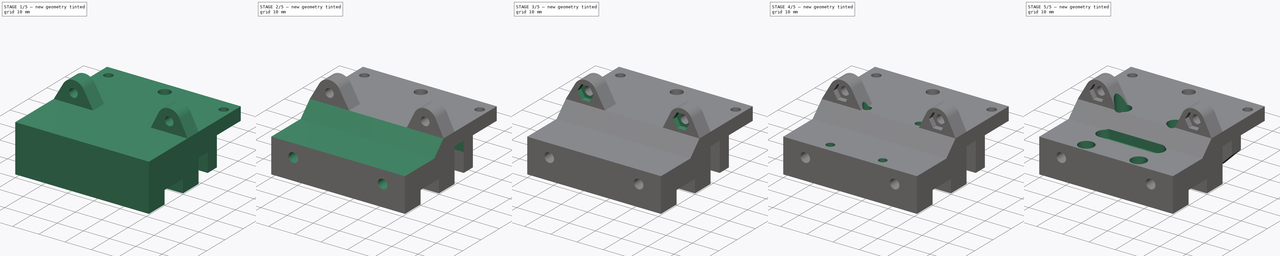
[diagram: build sequence overview — one tinted view per stage of 5, left to right]
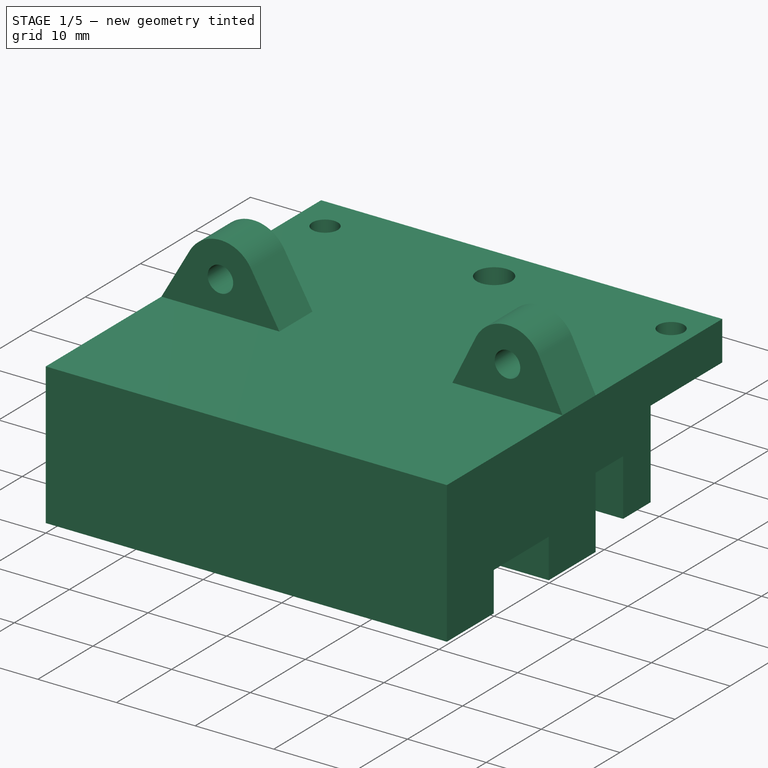
[diagram: stage 1 of 5 — iso view after this stage's code; geometry added in this stage tinted green]
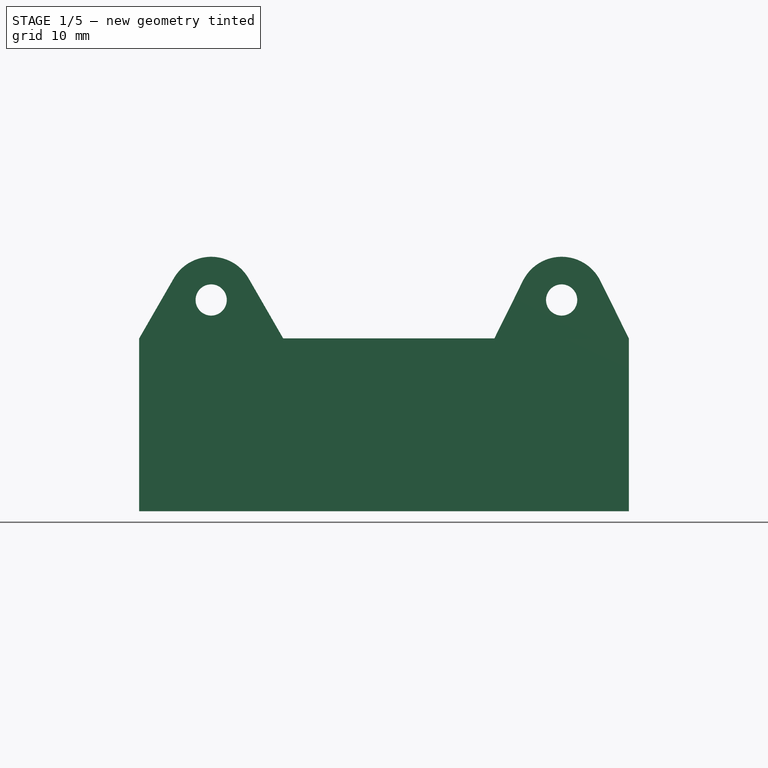
[diagram: stage 1 of 5 — front view after this stage's code; geometry added in this stage tinted green]
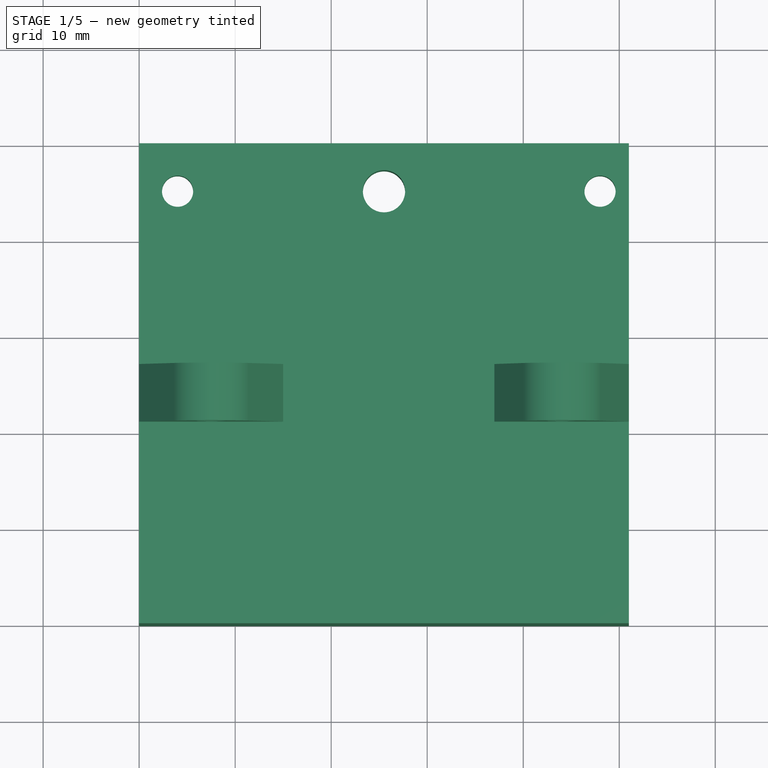
[diagram: stage 1 of 5 — top view after this stage's code; geometry added in this stage tinted green]
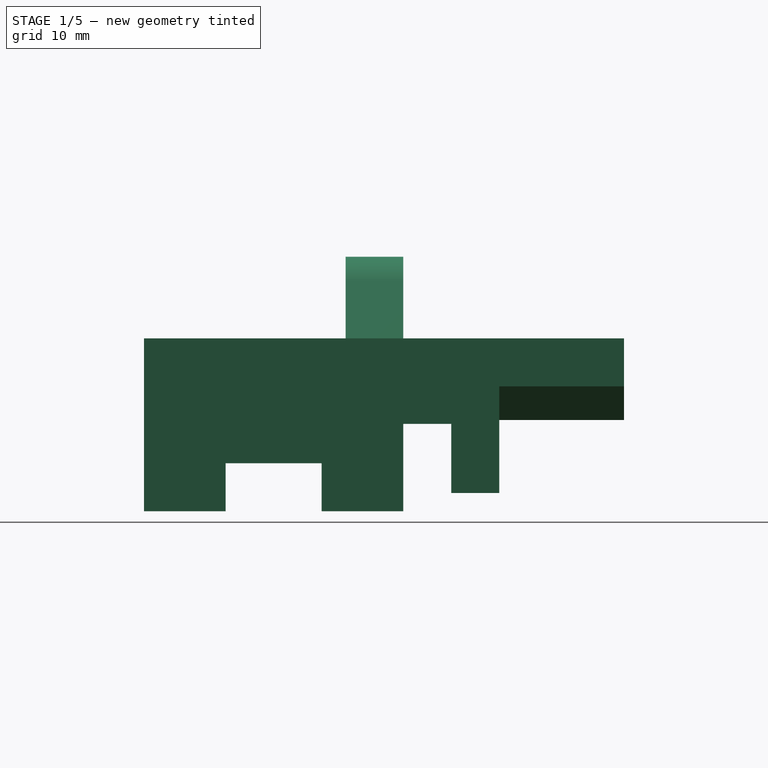
[diagram: stage 1 of 5 — right view after this stage's code; geometry added in this stage tinted green]
FCSTD DOCUMENT  (FreeCAD 0.19R24267 +99 (Git))
Label: top-mellow-libra-mini-mgn12h
License: All rights reserved
LicenseURL: http://en.wikipedia.org/wiki/All_rights_reserved
objects: Sketcher::SketchObject×18, PartDesign::Pocket×13, PartDesign::Hole×3, PartDesign::Pad×2, Part::Feature×1, PartDesign::Body×1
note: 56 computed .brp shape members not serialized (recipe doc carries the construction recipe); baked Part::Feature solids carry a one-line shape summary decoded from their .brp

FEATURE [Sketcher::SketchObject] Sketch  label="Sketch - body main"
  FullyConstrained = true
  MapMode = 5
  Placement = pos=(0,0,0) rot=(0.57735,0.57735,0.57735;2.0944rad)
  Support = -> [YZ_Plane]
  sketch-geometry (14):
    g0: LineSegment StartX=0 StartY=0 StartZ=0 EndX=8.5 EndY=0 EndZ=0
    g1: LineSegment StartX=8.5 StartY=0 StartZ=0 EndX=8.5 EndY=5 EndZ=0
    g2: LineSegment StartX=8.5 StartY=5 StartZ=0 EndX=18.5 EndY=5 EndZ=0
    g3: LineSegment StartX=18.5 StartY=5 StartZ=0 EndX=18.5 EndY=0 EndZ=0
    g4: LineSegment StartX=18.5 StartY=0 StartZ=0 EndX=27 EndY=0 EndZ=0
    g5: LineSegment StartX=27 StartY=0 StartZ=0 EndX=27 EndY=9.1 EndZ=0
    g6: LineSegment StartX=27 StartY=9.1 StartZ=0 EndX=32 EndY=9.1 EndZ=0
    g7: LineSegment StartX=32 StartY=9.1 StartZ=0 EndX=32 EndY=1.9 EndZ=0
    g8: LineSegment StartX=32 StartY=1.9 StartZ=0 EndX=50 EndY=1.9 EndZ=0
    g9: LineSegment StartX=0 StartY=0 StartZ=0 EndX=0 EndY=18 EndZ=0
    g10: LineSegment StartX=0 StartY=18 StartZ=0 EndX=50 EndY=18 EndZ=0
    g11: LineSegment StartX=50 StartY=18 StartZ=0 EndX=50 EndY=1.9 EndZ=0
    g12: GeomPoint X=32 Y=18 Z=0
    g13: LineSegment StartX=32 StartY=18 StartZ=0 EndX=32 EndY=9.1 EndZ=0
  constraints (39):
    c: Coincident(g0,g-1)
    c: PointOnObject(g0,g-1)
    c: Distance(g0) = 8.5
    c: Coincident(g1,g0)
    c: Perpendicular(g1,g-1)
    c: Coincident(g2,g1)
    c: Horizontal(g2)
    c: Coincident(g3,g2)
    c: PointOnObject(g3,g-1)
    c: Vertical(g3)
    c: Distance(g1) = 5
    c: Coincident(g4,g3)
    c: PointOnObject(g4,g-1)
    c: Distance(g4) = 8.5
    c: Coincident(g5,g4)
    c: Vertical(g5)
    c: Distance(g5) = 9.1
    c: Coincident(g6,g5)
    c: Horizontal(g6)
    c: Distance(g6) = 5
    c: Coincident(g7,g6)
    c: Vertical(g7)
    c: Distance(g7) = 7.2
    c: Coincident(g8,g7)
    c: Horizontal(g8)
    c: Coincident(g9,g0)
    c: PointOnObject(g9,g-2)
    c: Coincident(g10,g9)
    c: Horizontal(g10)
    c: Distance(g10) = 50
    c: Coincident(g11,g10)
    c: Vertical(g11)
    c: Coincident(g8,g11)
    c: Distance(g9) = 18
    c: Distance(g0,g4) = 27
    c: PointOnObject(g12,g10)
    c: Vertical(g13)
    c: Coincident(g12,g13)
    c: Coincident(g13,g6)
FEATURE [PartDesign::Pad] Pad  label="Pad - body main"
  Direction = (1,1,1)
  Length = 51
  Length2 = 100
  Placement = pos=(0,0,0) rot=(0.57735,0.57735,0.57735;2.0944rad)
  Profile = -> Sketch
  Type = 0
FEATURE [Part::Feature] Solid  label="top_orbiter_2_0_mgn12"
  Placement = pos=(46.5,13.5,23.05) rot=(0.707107,0,0.707107;3.14159rad)
  shape: bbox 46.11 x 57.65 x 19.52 mm, 148 faces (baked)
FEATURE [Sketcher::SketchObject] Sketch001  label="Sketch - holes for mounting the extruder"
  ExternalGeometry = -> [Pad,Sketch]
  FullyConstrained = true
  MapMode = 5
  Placement = pos=(-5e-15,7.9e-15,18) rot=(0,0,-1;1.5708rad)
  Support = -> [Pad]
  sketch-geometry (15):
    g0: LineSegment StartX=-27 StartY=51 StartZ=0 EndX=-27 EndY=0 EndZ=0
    g1: LineSegment StartX=-50 StartY=51 StartZ=0 EndX=-50 EndY=0 EndZ=0
    g2: GeomPoint X=-27 Y=25.5 Z=0
    g3: GeomPoint X=-50 Y=25.5 Z=0
    g4: LineSegment StartX=-27 StartY=25.5 StartZ=0 EndX=-50 EndY=25.5 EndZ=0
    g5: GeomPoint X=-45 Y=25.5 Z=0
    g6: GeomPoint X=-45 Y=51 Z=0
    g7: GeomPoint X=-45 Y=0 Z=0
    g8: LineSegment StartX=-45 StartY=51 StartZ=0 EndX=-45 EndY=0 EndZ=0
    g9: GeomPoint X=-45 Y=25.5 Z=0
    g10: Circle CenterX=-45 CenterY=25.5 CenterZ=0 NormalX=0 NormalY=0 NormalZ=1 AngleXU=0 Radius=2.2
    g11: GeomPoint X=-45 Y=4 Z=0
    g12: GeomPoint X=-45 Y=48 Z=0
    g13: Circle CenterX=-45 CenterY=48 CenterZ=0 NormalX=0 NormalY=0 NormalZ=1 AngleXU=0 Radius=1.625
    g14: Circle CenterX=-45 CenterY=4 CenterZ=0 NormalX=0 NormalY=0 NormalZ=1 AngleXU=0 Radius=1.625
  constraints (27):
    c: Coincident(g0,g-5)
    c: Coincident(g0,g-7)
    c: Coincident(g1,g-4)
    c: Coincident(g1,g-8)
    c: Symmetric(g0,g0,g2)
    c: Symmetric(g1,g1,g3)
    c: Coincident(g4,g2)
    c: Coincident(g4,g3)
    c: PointOnObject(g5,g4)
    c: Distance(g5,g2) = 18
    c: PointOnObject(g6,g-4)
    c: PointOnObject(g7,g-9)
    c: Coincident(g8,g6)
    c: Coincident(g8,g7)
    c: PointOnObject(g9,g8)
    c: Coincident(g9,g5)
    c: Perpendicular(g4,g8)
    c: Coincident(g10,g5)
    c: Diameter(g10) = 4.4
    c: PointOnObject(g11,g8)
    c: PointOnObject(g12,g8)
    c: Distance(g10,g11) = 21.5
    c: Distance(g12,g10) = 22.5
    c: Coincident(g13,g12)
    c: Coincident(g14,g11)
    c: Diameter(g13) = 3.25
    c: Diameter(g14) = 3.25
FEATURE [PartDesign::Pocket] Pocket  label="Pocket - holes for mounting the extruder "
  BaseFeature = -> Pad
  Length = 18
  Length2 = 100
  Placement = pos=(0,0,0) rot=(0.57735,0.57735,0.57735;2.0944rad)
  Profile = -> Sketch001
  Type = 0
FEATURE [Sketcher::SketchObject] Sketch002
  ExternalGeometry = -> [Sketch,Pocket]
  FullyConstrained = false
  MapMode = 5
  Placement = pos=(2.2e-14,50,-1.1e-14) rot=(0.57735,0.57735,0.57735;4.18879rad)
  Support = -> [Pocket]
  sketch-geometry (26):
    g0: GeomPoint X=18 Y=25.5 Z=0
    g1: LineSegment StartX=1.9 StartY=51 StartZ=0 EndX=1.9 EndY=-1.42e-14 EndZ=0
    g2: GeomPoint X=1.9 Y=25.5 Z=0
    g3: LineSegment StartX=18 StartY=51 StartZ=0 EndX=1.9 EndY=51 EndZ=0
    g4: LineSegment StartX=18 StartY=-2.41e-14 StartZ=0 EndX=1.9 EndY=-1.42e-14 EndZ=0
    g5: LineSegment StartX=18 StartY=25.5 StartZ=0 EndX=1.9 EndY=25.5 EndZ=0
    g6: GeomPoint X=13 Y=51 Z=0
    g7: GeomPoint X=13 Y=-2.13e-14 Z=0
    g8: LineSegment StartX=13 StartY=51 StartZ=0 EndX=13 EndY=-2.13e-14 EndZ=0
    g9: GeomPoint X=13 Y=25.5 Z=0
    g10: GeomPoint X=13 Y=25.5 Z=0
    g11: GeomPoint X=9.5 Y=25.5 Z=0
    g12: GeomPoint X=9.5 Y=51 Z=0
    g13: GeomPoint X=9.5 Y=-1.42e-14 Z=0
    g14: LineSegment StartX=9.5 StartY=51 StartZ=0 EndX=9.5 EndY=-1.42e-14 EndZ=0
    g15: GeomPoint X=9.5 Y=25.5 Z=0
    g16: GeomPoint X=13 Y=11 Z=0
    g17: GeomPoint X=13 Y=40 Z=0
    g18: LineSegment StartX=13 StartY=40 StartZ=0 EndX=9.5 EndY=36.5 EndZ=0
    g19: LineSegment StartX=13 StartY=11 StartZ=0 EndX=9.5 EndY=14.5 EndZ=0
    g20: LineSegment StartX=13 StartY=-2.13e-14 StartZ=0 EndX=13 EndY=11 EndZ=0
    g21: LineSegment StartX=13 StartY=40 StartZ=0 EndX=13 EndY=51 EndZ=0
    g22: LineSegment StartX=13 StartY=51 StartZ=0 EndX=1.9 EndY=51 EndZ=0
    g23: LineSegment StartX=1.9 StartY=51 StartZ=0 EndX=1.9 EndY=-1.42e-14 EndZ=0
    g24: LineSegment StartX=13 StartY=-2.13e-14 StartZ=0 EndX=1.9 EndY=-1.42e-14 EndZ=0
    g25: LineSegment StartX=9.5 StartY=14.5 StartZ=0 EndX=9.5 EndY=36.5 EndZ=0
  constraints (49):
    c: Symmetric(g-5,g-5,g0)
    c: Coincident(g1,g-6)
    c: Coincident(g1,g-4)
    c: Symmetric(g1,g1,g2)
    c: Coincident(g3,g-5)
    c: PointOnObject(g3,g1)
    c: Horizontal(g3)
    c: Coincident(g4,g-5)
    c: Coincident(g4,g1)
    c: Coincident(g5,g0)
    c: Coincident(g5,g2)
    c: PointOnObject(g6,g3)
    c: PointOnObject(g7,g4)
    c: Distance(g3,g6) = 5
    c: Coincident(g8,g6)
    c: Coincident(g8,g7)
    c: Perpendicular(g3,g8)
    c: PointOnObject(g9,g5)
    c: PointOnObject(g10,g8)
    c: Coincident(g9,g10)
    c: PointOnObject(g11,g5)
    c: PointOnObject(g12,g3)
    c: PointOnObject(g13,g4)
    c: Distance(g8,g12) = 3.5
    c: Coincident(g14,g12)
    c: Coincident(g14,g13)
    c: Perpendicular(g3,g14)
    c: PointOnObject(g15,g14)
    c: Coincident(g15,g11)
    c: PointOnObject(g18,g14)
    c: PointOnObject(g19,g14)
    c: PointOnObject(g16,g8)
    c: Distance(g9,g16) = 14.5
    c: PointOnObject(g17,g8)
    c: Distance(g17,g9) = 14.5
    c: Coincident(g19,g16)
    c: Coincident(g21,g18)
    c: Coincident(g21,g6)
    c: Coincident(g22,g1)
    c: Coincident(g20,g7)
    c: Coincident(g24,g20)
    c: Coincident(g24,g23)
    c: Coincident(g23,g1)
    c: Coincident(g23,g22)
    c: Coincident(g21,g22)
    c: Coincident(g18,g17)
    c: Coincident(g19,g20)
    c: Coincident(g25,g19)
    c: Coincident(g25,g18)
FEATURE [PartDesign::Pocket] Pocket001
  BaseFeature = -> Pocket
  Length = 13
  Length2 = 100
  Placement = pos=(0,0,0) rot=(0.57735,0.57735,0.57735;2.0944rad)
  Profile = -> Sketch002
  Type = 0
FEATURE [Sketcher::SketchObject] Sketch003
  ExternalGeometry = -> [Pocket001]
  FullyConstrained = false
  MapMode = 5
  Placement = pos=(1.19e-14,27,-5.9e-15) rot=(0.57735,0.57735,0.57735;4.18879rad)
  Support = -> [Pocket001]
  sketch-geometry (31):
    g0: LineSegment StartX=18 StartY=51 StartZ=0 EndX=18 EndY=-2.84e-14 EndZ=0
    g1: GeomPoint X=18 Y=25.5 Z=0
    g2: GeomPoint X=18 Y=44 Z=0
    g3: GeomPoint X=18 Y=7.5 Z=0
    g4: GeomPoint X=22 Y=51 Z=0
    g5: LineSegment StartX=22 StartY=51 StartZ=0 EndX=22 EndY=0 EndZ=0
    g6: GeomPoint X=22 Y=0 Z=0
    g7: GeomPoint X=22 Y=44 Z=0
    g8: LineSegment StartX=22 StartY=44 StartZ=0 EndX=18 EndY=44 EndZ=0
    g9: Circle CenterX=22 CenterY=44 CenterZ=0 NormalX=0 NormalY=0 NormalZ=1 AngleXU=0 Radius=1.625
    g10: ArcOfCircle CenterX=22 CenterY=44 CenterZ=0 NormalX=0 NormalY=0 NormalZ=1 AngleXU=0 Radius=4.5 StartAngle=5.17188 EndAngle=7.39449
    g11: LineSegment StartX=18 StartY=51 StartZ=0 EndX=23.9957 EndY=48.0333 EndZ=0
    g12: LineSegment StartX=18 StartY=51 StartZ=0 EndX=18 EndY=44 EndZ=0
    g13: GeomPoint X=18 Y=37 Z=0
    g14: LineSegment StartX=18 StartY=44 StartZ=0 EndX=18 EndY=37 EndZ=0
    g15: LineSegment StartX=18 StartY=37 StartZ=0 EndX=23.9957 EndY=39.9667 EndZ=0
    g16: LineSegment StartX=18 StartY=44 StartZ=0 EndX=18 EndY=37 EndZ=0
    g17: GeomPoint X=22 Y=7.5 Z=0
    g18: LineSegment StartX=18 StartY=7.5 StartZ=0 EndX=22 EndY=7.5 EndZ=0
    g19: Circle CenterX=22 CenterY=7.5 CenterZ=0 NormalX=0 NormalY=0 NormalZ=1 AngleXU=0 Radius=1.625
    g20: ArcOfCircle CenterX=22 CenterY=7.5 CenterZ=0 NormalX=0 NormalY=0 NormalZ=1 AngleXU=0 Radius=4.5 StartAngle=5.23532 EndAngle=7.33105
    g21: LineSegment StartX=18 StartY=-2.84e-14 StartZ=0 EndX=24.2474 EndY=3.60139 EndZ=0
    g22: GeomPoint X=18 Y=61.4131 Z=0
    g23: GeomPoint X=18 Y=61.4131 Z=0
    g24: GeomPoint X=18 Y=61.4131 Z=0
    g25: LineSegment StartX=18 StartY=15 StartZ=0 EndX=24.2474 EndY=11.3986 EndZ=0
    g26: LineSegment StartX=18 StartY=15 StartZ=0 EndX=18 EndY=7.5 EndZ=0
    g27: LineSegment StartX=18 StartY=7.5 StartZ=0 EndX=18 EndY=-2.84e-14 EndZ=0
    g28: GeomPoint X=22 Y=7.5 Z=0
    g29: GeomPoint X=22 Y=44 Z=0
    g30: GeomPoint X=22 Y=7.5 Z=0
  constraints (57):
    c: PointOnObject(g0,g-3)
    c: Coincident(g0,g-4)
    c: Vertical(g0)
    c: Symmetric(g0,g0,g1)
    c: PointOnObject(g2,g0)
    c: PointOnObject(g3,g0)
    c: Distance(g1,g2) = 18.5
    c: Distance(g3,g1) = 18
    c: PointOnObject(g4,g-3)
    c: Coincident(g5,g4)
    c: Vertical(g5)
    c: PointOnObject(g6,g-1)
    c: Coincident(g5,g6)
    c: Distance(g4,g0) = 4
    c: PointOnObject(g7,g5)
    c: Coincident(g8,g7)
    c: Coincident(g8,g2)
    c: Perpendicular(g0,g8)
    c: Diameter(g9) = 3.25
    c: Coincident(g7,g9)
    c: Coincident(g10,g9)
    c: Radius(g10) = 4.5
    c: Coincident(g11,g0)
    c: Tangent(g10,g11) = 1.5708
    c: PointOnObject(g12,g-3)
    c: Coincident(g12,g2)
    c: Vertical(g12)
    c: PointOnObject(g13,g0)
    c: Coincident(g14,g2)
    c: Coincident(g14,g13)
    c: Equal(g12,g14)
    c: Coincident(g15,g13)
    c: Tangent(g10,g15) = -1.5708
    c: Coincident(g16,g12)
    c: Coincident(g16,g15)
    c: PointOnObject(g17,g5)
    c: Coincident(g18,g3)
    c: Horizontal(g18)
    c: Coincident(g18,g17)
    c: Coincident(g19,g17)
    c: Coincident(g20,g19)
    c: Diameter(g19) = 3.25
    c: Radius(g20) = 4.5
    c: Coincident(g21,g0)
    c: Tangent(g20,g21) = -1.5708
    c: PointOnObject(g22,g0)
    c: PointOnObject(g25,g0)
    c: Coincident(g26,g25)
    c: PointOnObject(g26,g18)
    c: Vertical(g26)
    c: Coincident(g27,g26)
    c: Coincident(g27,g21)
    c: Equal(g27,g26)
    c: Tangent(g25,g20) = 1.5708
    c: Coincident(g28,g19)
    c: Coincident(g29,g9)
    c: Coincident(g30,g19)
FEATURE [PartDesign::Pad] Pad001
  BaseFeature = -> Pocket001
  Direction = (1,1,1)
  Length = 6
  Length2 = 100
  Placement = pos=(0,0,0) rot=(0.57735,0.57735,0.57735;2.0944rad)
  Profile = -> Sketch003
  Reversed = true
  Type = 0
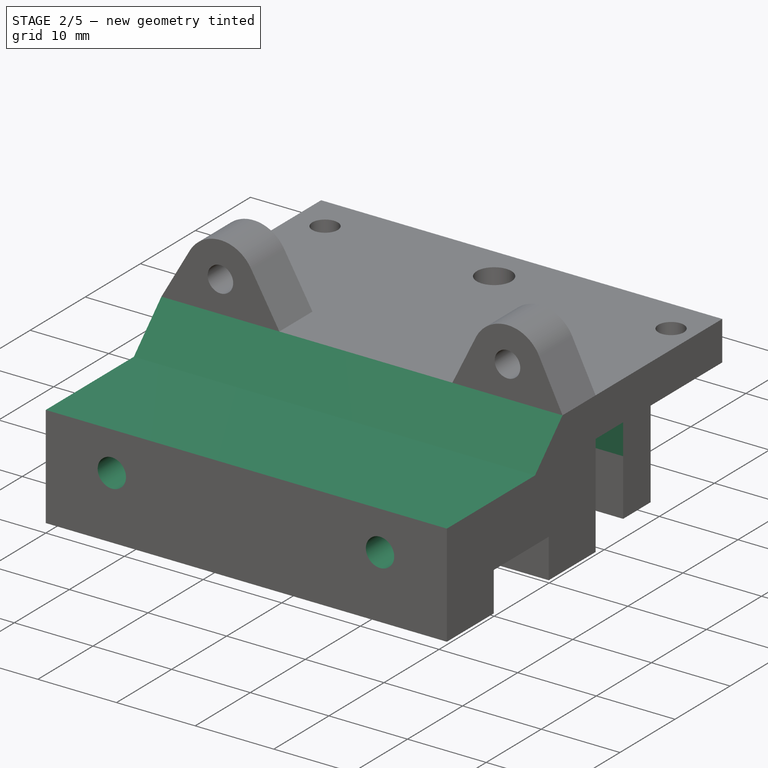
[diagram: stage 2 of 5 — iso view after this stage's code; geometry added in this stage tinted green]
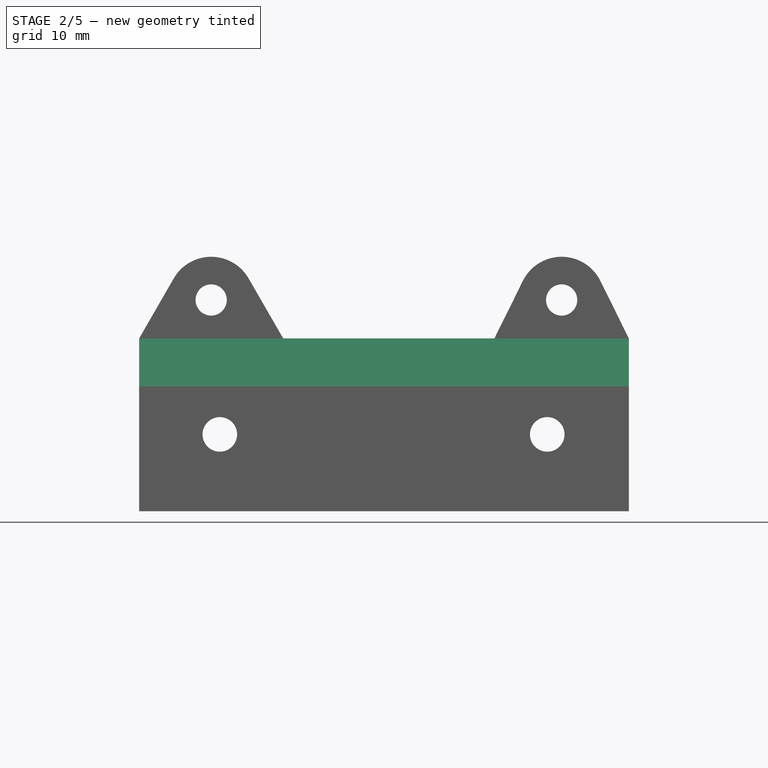
[diagram: stage 2 of 5 — front view after this stage's code; geometry added in this stage tinted green]
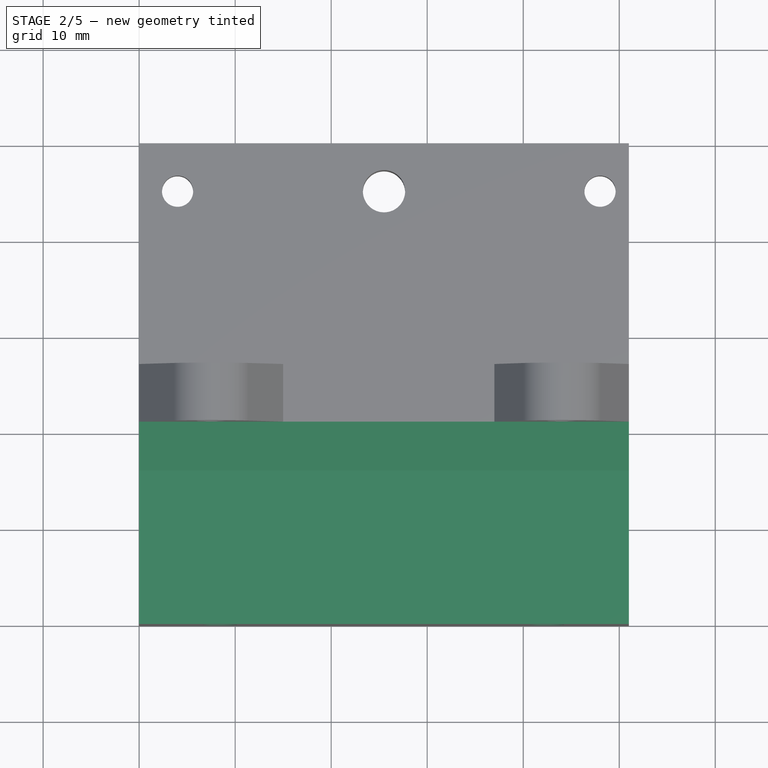
[diagram: stage 2 of 5 — top view after this stage's code; geometry added in this stage tinted green]
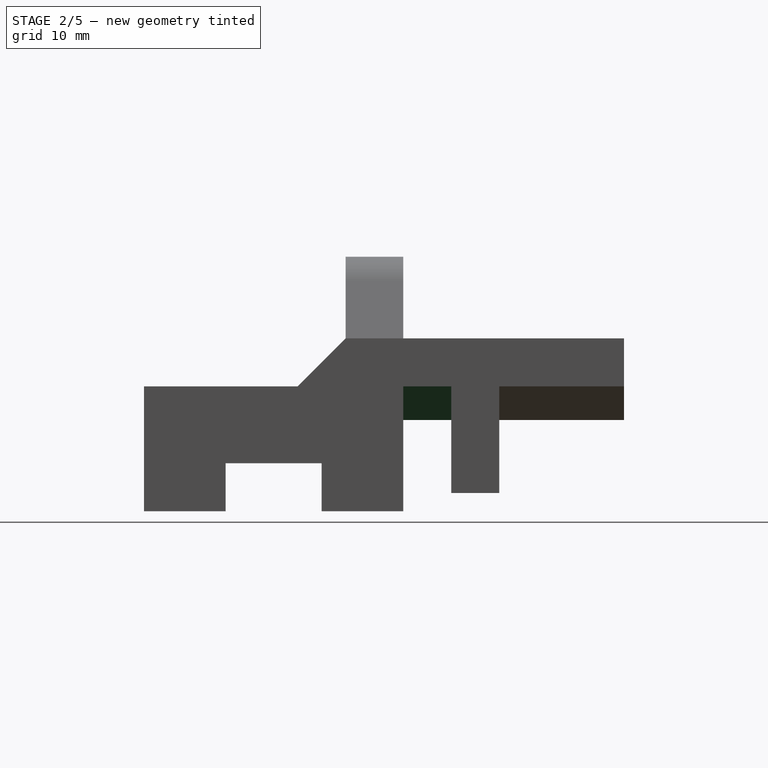
[diagram: stage 2 of 5 — right view after this stage's code; geometry added in this stage tinted green]
FEATURE [Sketcher::SketchObject] Sketch004
  ExternalGeometry = -> [Pocket001,Pad001]
  FullyConstrained = true
  MapMode = 5
  Placement = pos=(0,0,0) rot=(0.57735,0.57735,-0.57735;4.18879rad)
  Support = -> [Pad]
  sketch-geometry (15):
    g0: GeomPoint X=0 Y=-13 Z=0
    g1: LineSegment StartX=37 StartY=-13 StartZ=0 EndX=0 EndY=-13 EndZ=0
    g2: LineSegment StartX=50 StartY=-18 StartZ=0 EndX=7.1e-15 EndY=-18 EndZ=0
    g3: GeomPoint X=16 Y=-18 Z=0
    g4: GeomPoint X=16 Y=-13 Z=0
    g5: GeomPoint X=16 Y=-13 Z=0
    g6: LineSegment StartX=0 StartY=-18 StartZ=0 EndX=21 EndY=-18 EndZ=0
    g7: LineSegment StartX=21 StartY=-18 StartZ=0 EndX=16 EndY=-13 EndZ=0
    g8: GeomPoint X=16 Y=-13 Z=0
    g9: GeomPoint X=16 Y=-13 Z=0
    g10: GeomPoint X=16 Y=-13 Z=0
    g11: GeomPoint X=0 Y=-13 Z=0
    g12: LineSegment StartX=0 StartY=-13 StartZ=0 EndX=16 EndY=-13 EndZ=0
    g13: LineSegment StartX=0 StartY=-13 StartZ=0 EndX=0 EndY=-18 EndZ=0
    g14: LineSegment StartX=16 StartY=-13 StartZ=0 EndX=16 EndY=-18 EndZ=0
  constraints (26):
    c: PointOnObject(g0,g-2)
    c: Coincident(g1,g-3)
    c: Coincident(g1,g0)
    c: Perpendicular(g-2,g1)
    c: Coincident(g2,g-6)
    c: Coincident(g2,g-7)
    c: PointOnObject(g3,g2)
    c: PointOnObject(g4,g1)
    c: Coincident(g5,g4)
    c: PointOnObject(g6,g-2)
    c: Horizontal(g6)
    c: Coincident(g7,g4)
    c: Coincident(g8,g7)
    c: Coincident(g9,g7)
    c: Coincident(g10,g7)
    c: Coincident(g11,g0)
    c: Coincident(g12,g0)
    c: Coincident(g12,g7)
    c: Coincident(g13,g12)
    c: Coincident(g13,g6)
    c: Coincident(g-8,g6)
    c: Coincident(g7,g6)
    c: Coincident(g14,g7)
    c: Coincident(g14,g3)
    c: Vertical(g14)
    c: Distance(g6,g3) = 5
FEATURE [PartDesign::Pocket] Pocket002
  BaseFeature = -> Pad001
  Length = 51
  Length2 = 100
  Placement = pos=(0,0,0) rot=(0.57735,0.57735,0.57735;2.0944rad)
  Profile = -> Sketch004
  Type = 0
FEATURE [Sketcher::SketchObject] Sketch005
  FullyConstrained = true
  MapMode = 5
  Placement = pos=(-7.63e-14,1.08e-14,13) rot=(0.707107,0.707107,0;3.14159rad)
  Support = -> [Pocket002]
FEATURE [Sketcher::SketchObject] Sketch006
  ExternalGeometry = -> [Sketch]
  FullyConstrained = false
  MapMode = 5
  Placement = pos=(0,0,0) rot=(1,0,0;1.5708rad)
  sketch-geometry (9):
    g0: GeomPoint X=-1.8e-15 Y=8 Z=0
    g1: GeomPoint X=51 Y=8 Z=0
    g2: LineSegment StartX=-1.8e-15 StartY=8 StartZ=0 EndX=51 EndY=8 EndZ=0
    g3: GeomPoint X=8.4 Y=8 Z=0
    g4: GeomPoint X=42.5 Y=8 Z=0
    g5: GeomPoint X=25.5 Y=8 Z=0
    g6: GeomPoint X=42.5 Y=8 Z=0
    g7: Circle CenterX=8.4 CenterY=8 CenterZ=0 NormalX=0 NormalY=0 NormalZ=1 AngleXU=0 Radius=1.645
    g8: Circle CenterX=42.5 CenterY=8 CenterZ=0 NormalX=0 NormalY=0 NormalZ=1 AngleXU=0 Radius=1.595
  constraints (16):
    c: PointOnObject(g0,g-3)
    c: PointOnObject(g1,g-4)
    c: Coincident(g2,g0)
    c: Coincident(g2,g1)
    c: Horizontal(g2)
    c: PointOnObject(g3,g2)
    c: PointOnObject(g4,g2)
    c: Symmetric(g0,g1,g5)
    c: Distance(g-1,g0) = 8
    c: Coincident(g6,g4)
    c: Coincident(g7,g3)
    c: Distance(g3,g5) = 17.1
    c: Diameter(g7) = 3.29
    c: Distance(g4,g5) = 17
    c: Coincident(g8,g4)
    c: Diameter(g8) = 3.19
FEATURE [Sketcher::SketchObject] Sketch007
  ExternalGeometry = -> [Sketch006,Sketch002]
  FullyConstrained = true
  MapMode = 5
  Placement = pos=(1.5e-14,37,-6.3e-14) rot=(0,0.707107,0.707107;3.14159rad)
  sketch-geometry (8):
    g0: Circle CenterX=-42.5 CenterY=8 CenterZ=0 NormalX=0 NormalY=0 NormalZ=1 AngleXU=0 Radius=3
    g1: Circle CenterX=-8.4 CenterY=8 CenterZ=0 NormalX=0 NormalY=0 NormalZ=1 AngleXU=0 Radius=2.9
    g2: GeomPoint X=-51 Y=5 Z=0
    g3: GeomPoint X=0 Y=5 Z=0
    g4: LineSegment StartX=-51 StartY=5 StartZ=0 EndX=0 EndY=5 EndZ=0
    g5: Circle CenterX=-19.95 CenterY=5 CenterZ=0 NormalX=0 NormalY=0 NormalZ=1 AngleXU=0 Radius=1.645
    g6: Circle CenterX=-30.95 CenterY=5 CenterZ=0 NormalX=0 NormalY=0 NormalZ=1 AngleXU=0 Radius=1.645
    g7: GeomPoint X=-25.5 Y=5 Z=0
  constraints (17):
    c: Diameter(g0) = 6
    c: Diameter(g1) = 5.8
    c: PointOnObject(g2,g-5)
    c: PointOnObject(g3,g-2)
    c: Coincident(g4,g2)
    c: Coincident(g4,g3)
    c: Horizontal(g4)
    c: PointOnObject(g5,g4)
    c: PointOnObject(g6,g4)
    c: Diameter(g5) = 3.29
    c: Diameter(g6) = 3.29
    c: Distance(g4,g-6) = 3.1
    c: Symmetric(g4,g4,g7)
    c: Distance(g7,g5) = 5.55
    c: Distance(g6,g7) = 5.45
    c: Coincident(g0,g-3)
    c: Coincident(g1,g-4)
FEATURE [PartDesign::Hole] Hole001
  BaseFeature = -> Pocket002
  Depth = 25
  DepthType = 1
  Diameter = 3.6
  DrillForDepth = false
  DrillPoint = 1
  DrillPointAngle = 118
  HoleCutCountersinkAngle = 90
  HoleCutCustomValues = false
  HoleCutDepth = 0
  HoleCutDiameter = 6.7
  HoleCutType = 0
  ModelActualThread = false
  Placement = pos=(0,0,0) rot=(0.57735,0.57735,0.57735;2.0944rad)
  Profile = -> Sketch006
  Tapered = false
  TaperedAngle = 60
  ThreadAngle = 60
  ThreadClass = 0
  ThreadCutOffInner = 0.0541266
  ThreadCutOffOuter = 0.108253
  ThreadDirection = 1
  ThreadFit = 2
  ThreadPitch = 0.5
  ThreadSize = 9
  ThreadType = 1
  Threaded = false
FEATURE [Sketcher::SketchObject] Sketch008
  ExternalGeometry = -> [Sketch002,Pocket]
  FullyConstrained = true
  MapMode = 5
  Placement = pos=(1.19e-14,27,-5.9e-15) rot=(0.57735,0.57735,0.57735;4.18879rad)
  Support = -> [Pocket002]
  sketch-geometry (13):
    g0: LineSegment StartX=13 StartY=40 StartZ=0 EndX=13 EndY=11 EndZ=0
    g1: GeomPoint X=13 Y=39 Z=0
    g2: LineSegment StartX=13 StartY=39 StartZ=0 EndX=9.5 EndY=35.5 EndZ=0
    g3: LineSegment StartX=13 StartY=12 StartZ=0 EndX=9.5 EndY=15.5 EndZ=0
    g4: LineSegment StartX=13 StartY=51 StartZ=0 EndX=13 EndY=39 EndZ=0
    g5: LineSegment StartX=13 StartY=39 StartZ=0 EndX=9.5 EndY=35.5 EndZ=0
    g6: LineSegment StartX=9.5 StartY=35.5 StartZ=0 EndX=9.5 EndY=15.5 EndZ=0
    g7: LineSegment StartX=13 StartY=12 StartZ=0 EndX=9.5 EndY=15.5 EndZ=0
    g8: LineSegment StartX=13 StartY=12 StartZ=0 EndX=13 EndY=-2.13e-14 EndZ=0
    g9: LineSegment StartX=13 StartY=-2.13e-14 StartZ=0 EndX=9.1 EndY=-1.26e-14 EndZ=0
    g10: LineSegment StartX=9.1 StartY=-1.26e-14 StartZ=0 EndX=9.1 EndY=51 EndZ=0
    g11: LineSegment StartX=9.1 StartY=51 StartZ=0 EndX=13 EndY=51 EndZ=0
    g12: LineSegment StartX=13 StartY=51 StartZ=0 EndX=13 EndY=39 EndZ=0
  constraints (30):
    c: PointOnObject(g0,g-6)
    c: Coincident(g0,g-8)
    c: Vertical(g0)
    c: PointOnObject(g1,g0)
    c: Distance(g0,g1) = 1
    c: Coincident(g2,g1)
    c: PointOnObject(g2,g-7)
    c: PointOnObject(g3,g0)
    c: PointOnObject(g3,g-7)
    c: Parallel(g-6,g2)
    c: Parallel(g-8,g3)
    c: Distance(g0,g3) = 1
    c: Coincident(g4,g-5)
    c: Coincident(g4,g1)
    c: Coincident(g5,g4)
    c: Coincident(g12,g4)
    c: Coincident(g11,g4)
    c: Coincident(g4,g12)
    c: Coincident(g6,g2)
    c: Coincident(g5,g6)
    c: Coincident(g6,g3)
    c: Coincident(g6,g7)
    c: Coincident(g8,g7)
    c: Coincident(g3,g7)
    c: Coincident(g9,g8)
    c: Coincident(g8,g-4)
    c: Coincident(g9,g10)
    c: Coincident(g9,g-9)
    c: Coincident(g11,g10)
    c: Coincident(g10,g-9)
FEATURE [PartDesign::Pocket] Pocket003
  BaseFeature = -> Hole001
  Length = 5
  Length2 = 100
  Placement = pos=(0,0,0) rot=(0.57735,0.57735,0.57735;2.0944rad)
  Profile = -> Sketch008
  Reversed = true
  Type = 0
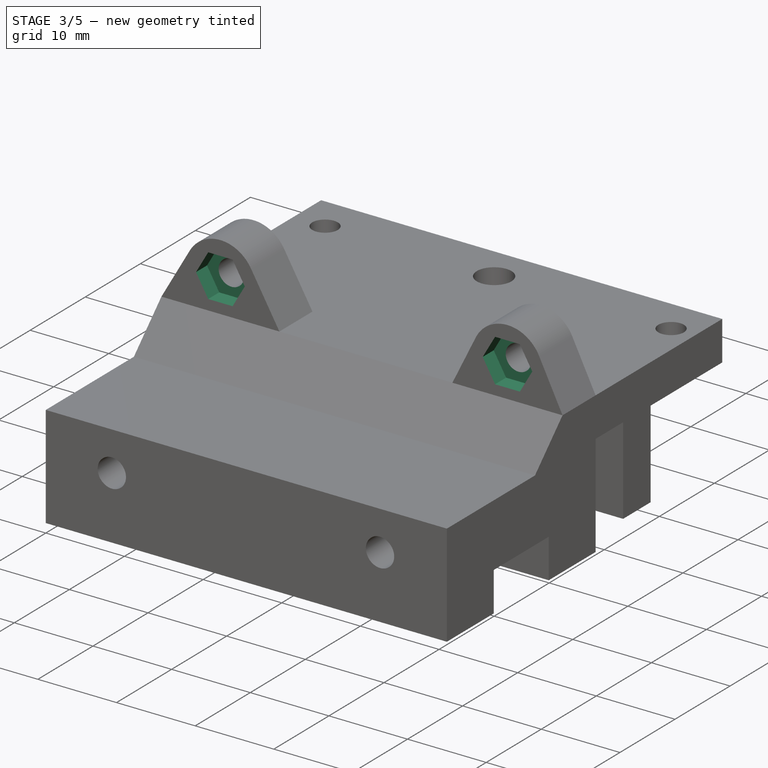
[diagram: stage 3 of 5 — iso view after this stage's code; geometry added in this stage tinted green]
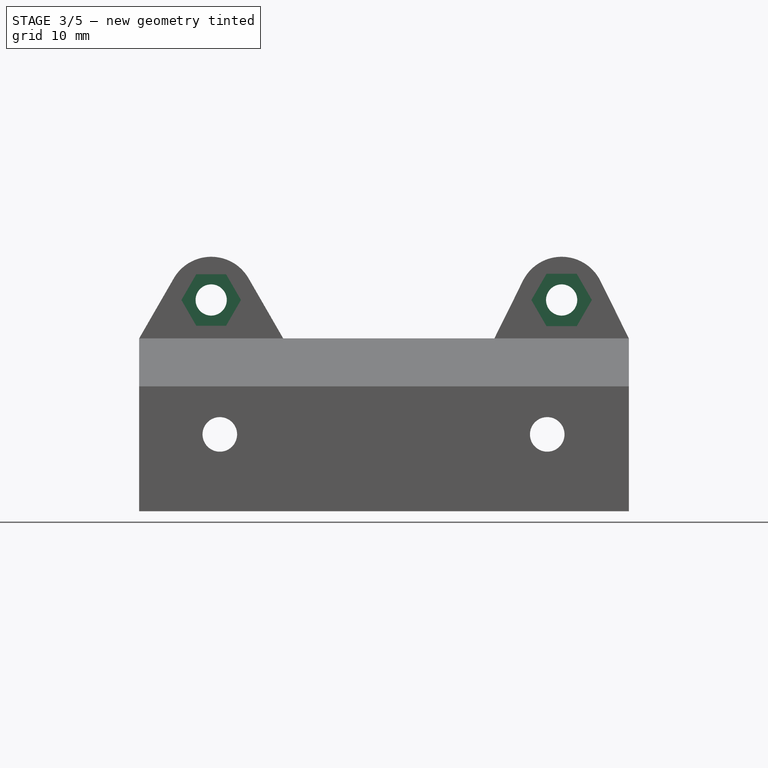
[diagram: stage 3 of 5 — front view after this stage's code; geometry added in this stage tinted green]
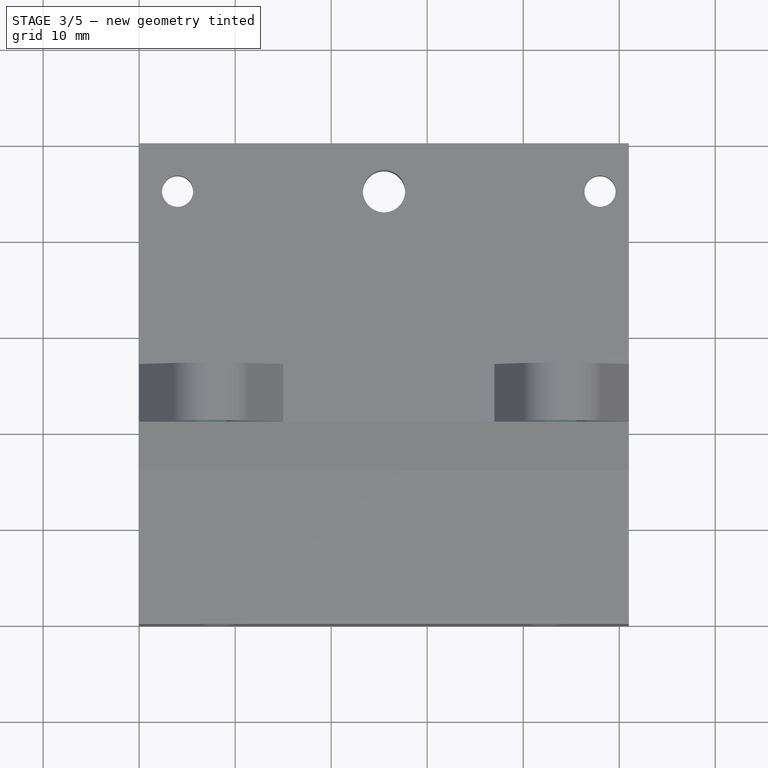
[diagram: stage 3 of 5 — top view after this stage's code; geometry added in this stage tinted green]
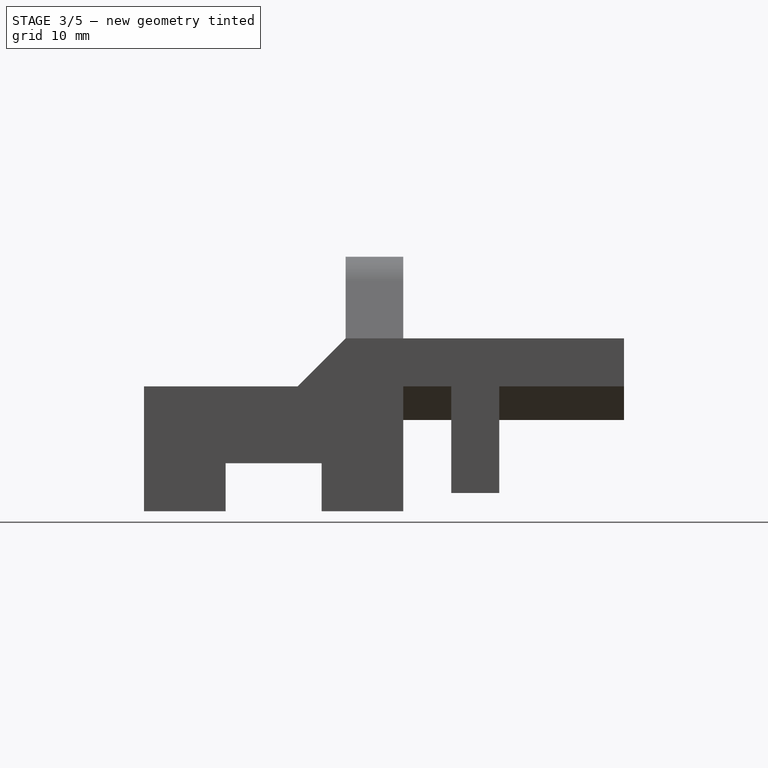
[diagram: stage 3 of 5 — right view after this stage's code; geometry added in this stage tinted green]
FEATURE [PartDesign::Pocket] Pocket004
  BaseFeature = -> Pocket003
  Length = 5
  Length2 = 100
  Placement = pos=(0,0,0) rot=(0.57735,0.57735,0.57735;2.0944rad)
  Profile = -> Sketch007
  Type = 0
FEATURE [PartDesign::Pocket] Pocket005
  BaseFeature = -> Pocket004
  Length = 5
  Length2 = 100
  Placement = pos=(0,0,0) rot=(0.57735,0.57735,0.57735;2.0944rad)
  Profile = -> Sketch007
  Type = 0
FEATURE [Sketcher::SketchObject] Sketch009
  ExternalGeometry = -> [Pocket004]
  FullyConstrained = false
  MapMode = 5
  Placement = pos=(9.7e-15,21,-1.81e-14) rot=(0.57735,0.57735,-0.57735;2.0944rad)
  Support = -> [Pocket004]
  sketch-geometry (12):
    g0: LineSegment StartX=-18 StartY=-5.3e-14 StartZ=0 EndX=-18 EndY=51 EndZ=0
    g1: GeomPoint X=-18 Y=7.5 Z=0
    g2: LineSegment StartX=-18 StartY=7.5 StartZ=0 EndX=-29.1418 EndY=7.5 EndZ=0
    g3: GeomPoint X=-18 Y=25.5 Z=0
    g4: GeomPoint X=-22 Y=7.5 Z=0
    g5: LineSegment StartX=-22 StartY=10.6 StartZ=0 EndX=-24.6847 EndY=9.05 EndZ=0
    g6: LineSegment StartX=-24.6847 StartY=9.05 StartZ=0 EndX=-24.6847 EndY=5.95 EndZ=0
    g7: LineSegment StartX=-24.6847 StartY=5.95 StartZ=0 EndX=-22 EndY=4.4 EndZ=0
    g8: LineSegment StartX=-22 StartY=4.4 StartZ=0 EndX=-19.3153 EndY=5.95 EndZ=0
    g9: LineSegment StartX=-19.3153 StartY=5.95 StartZ=0 EndX=-19.3153 EndY=9.05 EndZ=0
    g10: LineSegment StartX=-19.3153 StartY=9.05 StartZ=0 EndX=-22 EndY=10.6 EndZ=0
    g11: Circle CenterX=-22 CenterY=7.5 CenterZ=0 NormalX=0 NormalY=0 NormalZ=1 AngleXU=0 Radius=3.1
  constraints (25):
    c: Coincident(g0,g-3)
    c: Coincident(g0,g-4)
    c: PointOnObject(g1,g0)
    c: Coincident(g2,g1)
    c: Horizontal(g2)
    c: Distance(g3,g1) = 18
    c: Symmetric(g0,g0,g3)
    c: PointOnObject(g4,g2)
    c: Distance(g4,g1) = 4
    c: Coincident(g5,g6)
    c: Coincident(g6,g7)
    c: Coincident(g7,g8)
    c: Coincident(g8,g9)
    c: Coincident(g9,g10)
    c: Coincident(g10,g5)
    c: Equal(g5, g6-g10) x5
    c: PointOnObject(g5,g11)
    c: PointOnObject(g6,g11)
    c: PointOnObject(g7,g11)
    c: PointOnObject(g8,g11)
    c: PointOnObject(g9,g11)
    c: PointOnObject(g10,g11)
    c: Coincident(g11,g4)
    c: Diameter(g11) = 6.2
    c: Parallel(g9,g0)
FEATURE [PartDesign::Pocket] Pocket006
  BaseFeature = -> Pocket005
  Length = 2
  Length2 = 100
  Placement = pos=(0,0,0) rot=(0.57735,0.57735,0.57735;2.0944rad)
  Profile = -> Sketch009
  Type = 0
FEATURE [Sketcher::SketchObject] Sketch010
  ExternalGeometry = -> [Pocket006,Sketch]
  FullyConstrained = false
  MapMode = 5
  Placement = pos=(1.07e-14,21,-2.12e-14) rot=(0.57735,0.57735,-0.57735;2.0944rad)
  Support = -> [Pocket006]
  sketch-geometry (12):
    g0: LineSegment StartX=-18 StartY=2.5e-15 StartZ=0 EndX=-18 EndY=51 EndZ=0
    g1: GeomPoint X=-18 Y=25.5 Z=0
    g2: GeomPoint X=-18 Y=44 Z=0
    g3: LineSegment StartX=-18 StartY=44 StartZ=0 EndX=-33.5718 EndY=44 EndZ=0
    g4: GeomPoint X=-22 Y=44 Z=0
    g5: LineSegment StartX=-22 StartY=47.15 StartZ=0 EndX=-24.728 EndY=45.575 EndZ=0
    g6: LineSegment StartX=-24.728 StartY=45.575 StartZ=0 EndX=-24.728 EndY=42.425 EndZ=0
    g7: LineSegment StartX=-24.728 StartY=42.425 StartZ=0 EndX=-22 EndY=40.85 EndZ=0
    g8: LineSegment StartX=-22 StartY=40.85 StartZ=0 EndX=-19.272 EndY=42.425 EndZ=0
    g9: LineSegment StartX=-19.272 StartY=42.425 StartZ=0 EndX=-19.272 EndY=45.575 EndZ=0
    g10: LineSegment StartX=-19.272 StartY=45.575 StartZ=0 EndX=-22 EndY=47.15 EndZ=0
    g11: Circle CenterX=-22 CenterY=44 CenterZ=0 NormalX=0 NormalY=0 NormalZ=1 AngleXU=0 Radius=3.15
  constraints (25):
    c: Coincident(g0,g-4)
    c: Coincident(g0,g-3)
    c: Symmetric(g0,g0,g1)
    c: PointOnObject(g2,g0)
    c: Coincident(g3,g2)
    c: Perpendicular(g3,g0)
    c: Distance(g1,g3) = 18.5
    c: PointOnObject(g4,g3)
    c: Distance(g2,g4) = 4
    c: Coincident(g5,g6)
    c: Coincident(g6,g7)
    c: Coincident(g7,g8)
    c: Coincident(g8,g9)
    c: Coincident(g9,g10)
    c: Coincident(g10,g5)
    c: Equal(g5, g6-g10) x5
    c: PointOnObject(g5,g11)
    c: PointOnObject(g6,g11)
    c: PointOnObject(g7,g11)
    c: PointOnObject(g8,g11)
    c: PointOnObject(g9,g11)
    c: PointOnObject(g10,g11)
    c: Coincident(g11,g4)
    c: Parallel(g0,g9)
    c: Diameter(g11) = 6.3
FEATURE [PartDesign::Pocket] Pocket007
  BaseFeature = -> Pocket006
  Length = 2
  Length2 = 100
  Placement = pos=(0,0,0) rot=(0.57735,0.57735,0.57735;2.0944rad)
  Profile = -> Sketch010
  Type = 0
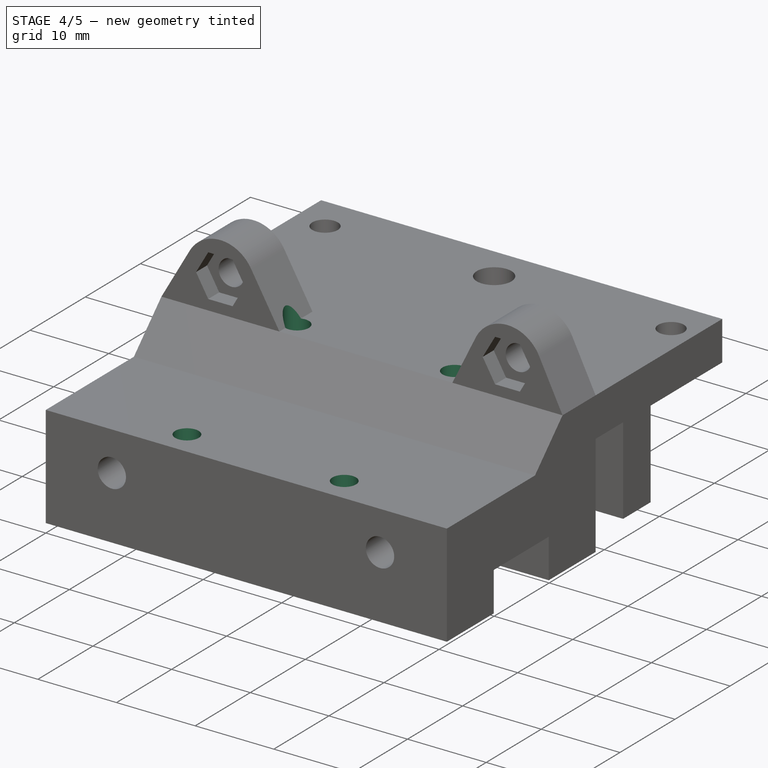
[diagram: stage 4 of 5 — iso view after this stage's code; geometry added in this stage tinted green]
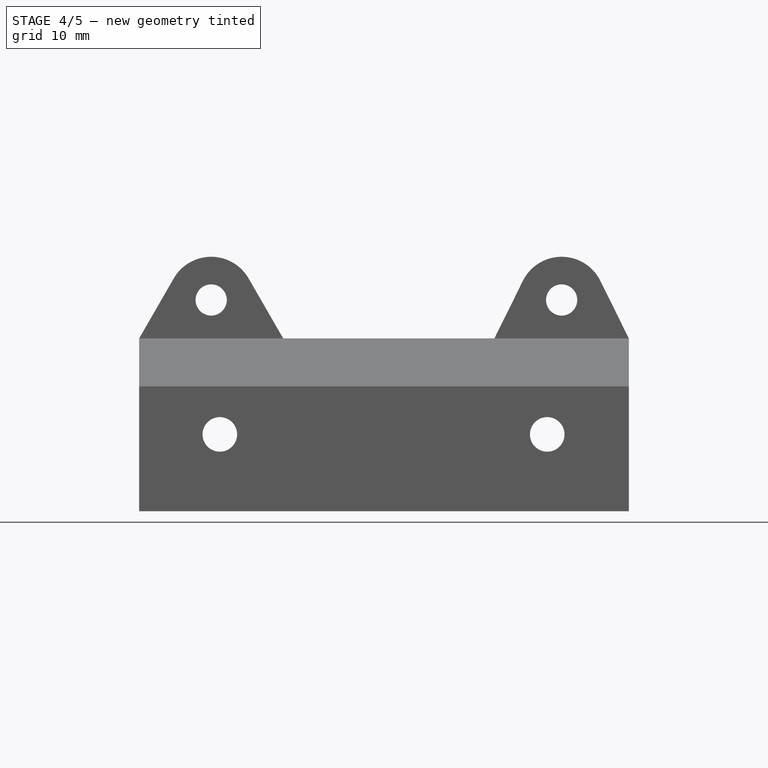
[diagram: stage 4 of 5 — front view after this stage's code; geometry added in this stage tinted green]
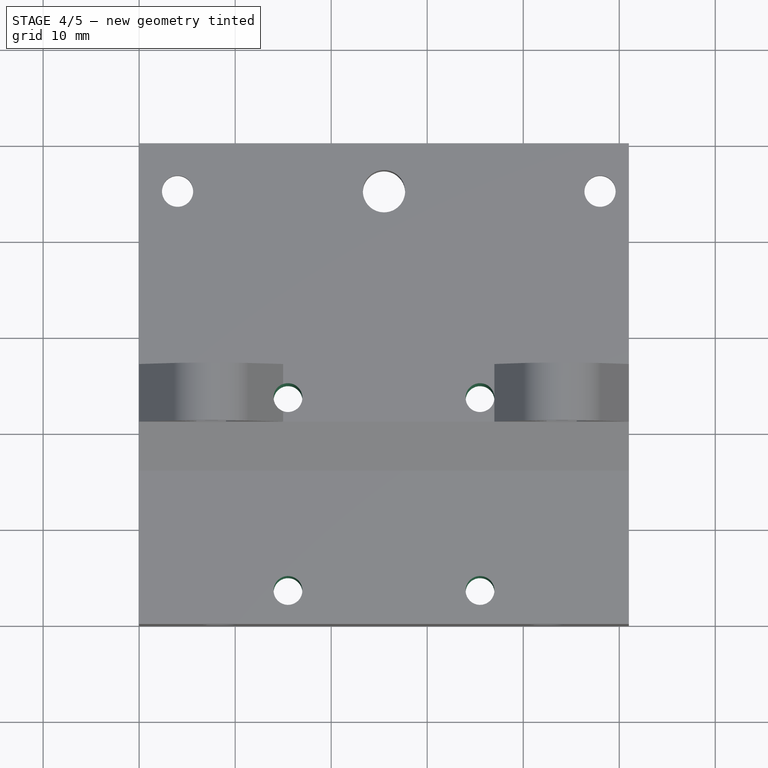
[diagram: stage 4 of 5 — top view after this stage's code; geometry added in this stage tinted green]
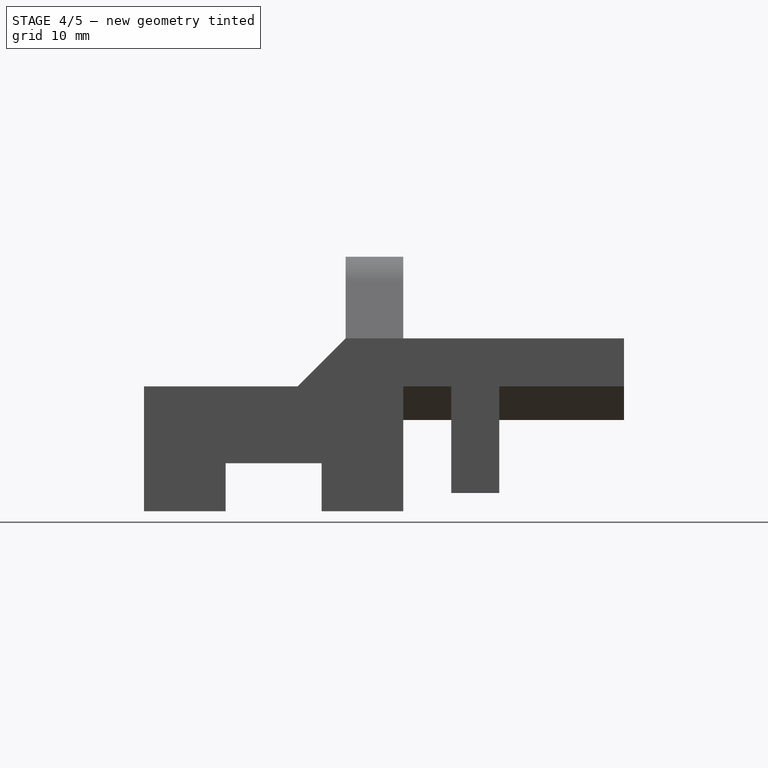
[diagram: stage 4 of 5 — right view after this stage's code; geometry added in this stage tinted green]
FEATURE [Sketcher::SketchObject] Sketch011
  ExternalGeometry = -> [Sketch002,Pocket007]
  FullyConstrained = true
  MapMode = 5
  Placement = pos=(6.85e-14,1.08e-14,13) rot=(0.707107,0.707107,0;3.14159rad)
  Support = -> [Pocket007]
  sketch-geometry (19):
    g0: GeomPoint X=50 Y=25.5 Z=0
    g1: GeomPoint X=-6.23e-14 Y=25.5 Z=0
    g2: LineSegment StartX=-6.23e-14 StartY=25.5 StartZ=0 EndX=50 EndY=25.5 EndZ=0
    g3: LineSegment StartX=27 StartY=51 StartZ=0 EndX=27 EndY=-1.137e-13 EndZ=0
    g4: GeomPoint X=50 Y=4 Z=0
    g5: LineSegment StartX=27 StartY=4 StartZ=0 EndX=50 EndY=4 EndZ=0
    g6: GeomPoint X=45 Y=25.5 Z=0
    g7: GeomPoint X=45 Y=4 Z=0
    g8: GeomPoint X=27 Y=25.5 Z=0
    g9: GeomPoint X=27 Y=25.5 Z=0
    g10: LineSegment StartX=45 StartY=25.5 StartZ=0 EndX=45 EndY=4 EndZ=0
    g11: GeomPoint X=27 Y=4 Z=0
    g12: LineSegment StartX=48.15 StartY=4 StartZ=0 EndX=46.575 EndY=6.72798 EndZ=0
    g13: LineSegment StartX=46.575 StartY=6.72798 StartZ=0 EndX=43.425 EndY=6.72798 EndZ=0
    g14: LineSegment StartX=43.425 StartY=6.72798 StartZ=0 EndX=41.85 EndY=4 EndZ=0
    g15: LineSegment StartX=41.85 StartY=4 StartZ=0 EndX=43.425 EndY=1.27202 EndZ=0
    g16: LineSegment StartX=43.425 StartY=1.27202 StartZ=0 EndX=46.575 EndY=1.27202 EndZ=0
    g17: LineSegment StartX=46.575 StartY=1.27202 StartZ=0 EndX=48.15 EndY=4 EndZ=0
    g18: Circle CenterX=45 CenterY=4 CenterZ=0 NormalX=0 NormalY=0 NormalZ=1 AngleXU=0 Radius=3.15
  constraints (37):
    c: Symmetric(g-3,g-3,g0)
    c: Symmetric(g-4,g-1,g1)
    c: Coincident(g2,g1)
    c: Coincident(g2,g0)
    c: Coincident(g3,g-6)
    c: Coincident(g3,g-5)
    c: PointOnObject(g4,g-3)
    c: Coincident(g5,g4)
    c: Perpendicular(g3,g5)
    c: PointOnObject(g6,g2)
    c: PointOnObject(g7,g5)
    c: PointOnObject(g8,g3)
    c: PointOnObject(g9,g2)
    c: Coincident(g8,g9)
    c: Distance(g8,g6) = 18
    c: Coincident(g10,g6)
    c: Coincident(g10,g7)
    c: Vertical(g10)
    c: PointOnObject(g11,g3)
    c: Coincident(g5,g11)
    c: Distance(g0,g5) = 21.5
    c: Coincident(g12,g13)
    c: Coincident(g13,g14)
    c: Coincident(g14,g15)
    c: Coincident(g15,g16)
    c: Coincident(g16,g17)
    c: Coincident(g17,g12)
    c: Equal(g12, g13-g17) x5
    c: PointOnObject(g12,g18)
    c: PointOnObject(g13,g18)
    c: PointOnObject(g14,g18)
    c: PointOnObject(g15,g18)
    c: PointOnObject(g16,g18)
    c: PointOnObject(g17,g18)
    c: Coincident(g18,g7)
    c: Diameter(g18) = 6.3
    c: Parallel(g16,g-1)
FEATURE [PartDesign::Pocket] Pocket008
  BaseFeature = -> Pocket007
  Length = 2
  Length2 = 100
  Placement = pos=(0,0,0) rot=(0.57735,0.57735,0.57735;2.0944rad)
  Profile = -> Sketch011
  Type = 0
FEATURE [Sketcher::SketchObject] Sketch012
  ExternalGeometry = -> [Sketch002,Pocket008]
  FullyConstrained = true
  MapMode = 5
  Placement = pos=(6.85e-14,1.08e-14,13) rot=(0.707107,0.707107,0;3.14159rad)
  Support = -> [Pocket008]
  sketch-geometry (14):
    g0: GeomPoint X=27 Y=25.5 Z=0
    g1: GeomPoint X=50 Y=25.5 Z=0
    g2: LineSegment StartX=27 StartY=25.5 StartZ=0 EndX=50 EndY=25.5 EndZ=0
    g3: GeomPoint X=27 Y=48 Z=0
    g4: GeomPoint X=50 Y=48 Z=0
    g5: LineSegment StartX=50 StartY=48 StartZ=0 EndX=27 EndY=48 EndZ=0
    g6: GeomPoint X=45 Y=48 Z=0
    g7: LineSegment StartX=48.15 StartY=48 StartZ=0 EndX=46.575 EndY=50.728 EndZ=0
    g8: LineSegment StartX=46.575 StartY=50.728 StartZ=0 EndX=43.425 EndY=50.728 EndZ=0
    g9: LineSegment StartX=43.425 StartY=50.728 StartZ=0 EndX=41.85 EndY=48 EndZ=0
    g10: LineSegment StartX=41.85 StartY=48 StartZ=0 EndX=43.425 EndY=45.272 EndZ=0
    g11: LineSegment StartX=43.425 StartY=45.272 StartZ=0 EndX=46.575 EndY=45.272 EndZ=0
    g12: LineSegment StartX=46.575 StartY=45.272 StartZ=0 EndX=48.15 EndY=48 EndZ=0
    g13: Circle CenterX=45 CenterY=48 CenterZ=0 NormalX=0 NormalY=0 NormalZ=1 AngleXU=0 Radius=3.15
  constraints (28):
    c: Symmetric(g-4,g-4,g0)
    c: Symmetric(g-3,g-3,g1)
    c: Coincident(g2,g0)
    c: Coincident(g2,g1)
    c: PointOnObject(g3,g-4)
    c: PointOnObject(g4,g-3)
    c: Distance(g2,g4) = 22.5
    c: Coincident(g5,g4)
    c: Coincident(g5,g3)
    c: Perpendicular(g5,g-3)
    c: PointOnObject(g6,g5)
    c: Distance(g3,g6) = 18
    c: Coincident(g7,g8)
    c: Coincident(g8,g9)
    c: Coincident(g9,g10)
    c: Coincident(g10,g11)
    c: Coincident(g11,g12)
    c: Coincident(g12,g7)
    c: Equal(g7, g8-g12) x5
    c: PointOnObject(g7,g13)
    c: PointOnObject(g8,g13)
    c: PointOnObject(g9,g13)
    c: PointOnObject(g10,g13)
    c: PointOnObject(g11,g13)
    c: PointOnObject(g12,g13)
    c: Coincident(g13,g6)
    c: Parallel(g8,g5)
    c: Diameter(g13) = 6.3
FEATURE [PartDesign::Pocket] Pocket009
  BaseFeature = -> Pocket008
  Length = 2
  Length2 = 100
  Placement = pos=(0,0,0) rot=(0.57735,0.57735,0.57735;2.0944rad)
  Profile = -> Sketch012
  Type = 0
FEATURE [Sketcher::SketchObject] Sketch013
  ExternalGeometry = -> [Pocket009,Sketch002]
  FullyConstrained = true
  MapMode = 5
  Placement = pos=(0,0,0) rot=(0.707107,0.707107,0;3.14159rad)
  Support = -> [Pocket009]
  sketch-geometry (22):
    g0: LineSegment StartX=-1.472e-13 StartY=51 StartZ=0 EndX=50 EndY=51 EndZ=0
    g1: LineSegment StartX=0 StartY=0 StartZ=0 EndX=50 EndY=4.8e-15 EndZ=0
    g2: GeomPoint X=3.5 Y=0 Z=0
    g3: GeomPoint X=23.5 Y=0 Z=0
    g4: GeomPoint X=3.5 Y=51 Z=0
    g5: GeomPoint X=23.5 Y=51 Z=0
    g6: LineSegment StartX=3.5 StartY=51 StartZ=0 EndX=3.5 EndY=0 EndZ=0
    g7: LineSegment StartX=23.5 StartY=51 StartZ=0 EndX=23.5 EndY=0 EndZ=0
    g8: GeomPoint X=3.5 Y=35.5 Z=0
    g9: GeomPoint X=3.5 Y=15.5 Z=0
    g10: GeomPoint X=23.5 Y=35.5 Z=0
    g11: GeomPoint X=23.5 Y=15.5 Z=0
    g12: LineSegment StartX=3.5 StartY=35.5 StartZ=0 EndX=23.5 EndY=35.5 EndZ=0
    g13: LineSegment StartX=3.5 StartY=15.5 StartZ=0 EndX=23.5 EndY=15.5 EndZ=0
    g14: GeomPoint X=13.5 Y=0 Z=0
    g15: GeomPoint X=3.5 Y=25.5 Z=0
    g16: GeomPoint X=3.5 Y=35.5 Z=0
    g17: GeomPoint X=3.5 Y=15.5 Z=0
    g18: Circle CenterX=3.5 CenterY=15.5 CenterZ=0 NormalX=0 NormalY=0 NormalZ=1 AngleXU=0 Radius=1.5
    g19: Circle CenterX=3.5 CenterY=35.5 CenterZ=0 NormalX=0 NormalY=0 NormalZ=1 AngleXU=0 Radius=1.5
    g20: Circle CenterX=23.5 CenterY=35.5 CenterZ=0 NormalX=0 NormalY=0 NormalZ=1 AngleXU=0 Radius=1.5
    g21: Circle CenterX=23.5 CenterY=15.5 CenterZ=0 NormalX=0 NormalY=0 NormalZ=1 AngleXU=0 Radius=1.5
  constraints (38):
    c: Coincident(g0,g-3)
    c: Coincident(g0,g-4)
    c: Coincident(g1,g-1)
    c: Coincident(g1,g-5)
    c: PointOnObject(g2,g1)
    c: Distance(g2,g3) = 20
    c: PointOnObject(g4,g0)
    c: PointOnObject(g5,g0)
    c: Coincident(g6,g4)
    c: Coincident(g6,g2)
    c: Vertical(g6)
    c: Coincident(g7,g5)
    c: Coincident(g7,g3)
    c: Vertical(g7)
    c: PointOnObject(g8,g6)
    c: PointOnObject(g10,g7)
    c: PointOnObject(g11,g7)
    c: Distance(g8,g9) = 20
    c: Coincident(g12,g8)
    c: Coincident(g12,g10)
    c: Coincident(g13,g9)
    c: Coincident(g13,g11)
    c: Perpendicular(g6,g13)
    c: Perpendicular(g6,g12)
    c: Symmetric(g1,g-6,g14)
    c: Symmetric(g6,g7,g14)
    c: Symmetric(g6,g6,g15)
    c: Symmetric(g12,g13,g15)
    c: Coincident(g16,g8)
    c: Coincident(g17,g9)
    c: Coincident(g18,g9)
    c: Coincident(g19,g8)
    c: Coincident(g20,g10)
    c: Coincident(g21,g11)
    c: Equal(g18,g19)
    c: Equal(g19,g20)
    c: Equal(g20,g21)
    c: Diameter(g18) = 3
FEATURE [PartDesign::Hole] Hole
  BaseFeature = -> Pocket009
  Depth = 25
  DepthType = 1
  Diameter = 3
  DrillForDepth = false
  DrillPoint = 1
  DrillPointAngle = 118
  HoleCutCountersinkAngle = 90
  HoleCutCustomValues = false
  HoleCutDepth = 0
  HoleCutDiameter = 6.1
  HoleCutType = 0
  ModelActualThread = false
  Placement = pos=(0,0,0) rot=(0.57735,0.57735,0.57735;2.0944rad)
  Profile = -> Sketch013
  Tapered = false
  TaperedAngle = 90
  ThreadAngle = 0
  ThreadClass = 0
  ThreadCutOffInner = 0
  ThreadCutOffOuter = 0
  ThreadDirection = 0
  ThreadFit = 0
  ThreadPitch = 0
  ThreadSize = 0
  ThreadType = 0
  Threaded = false
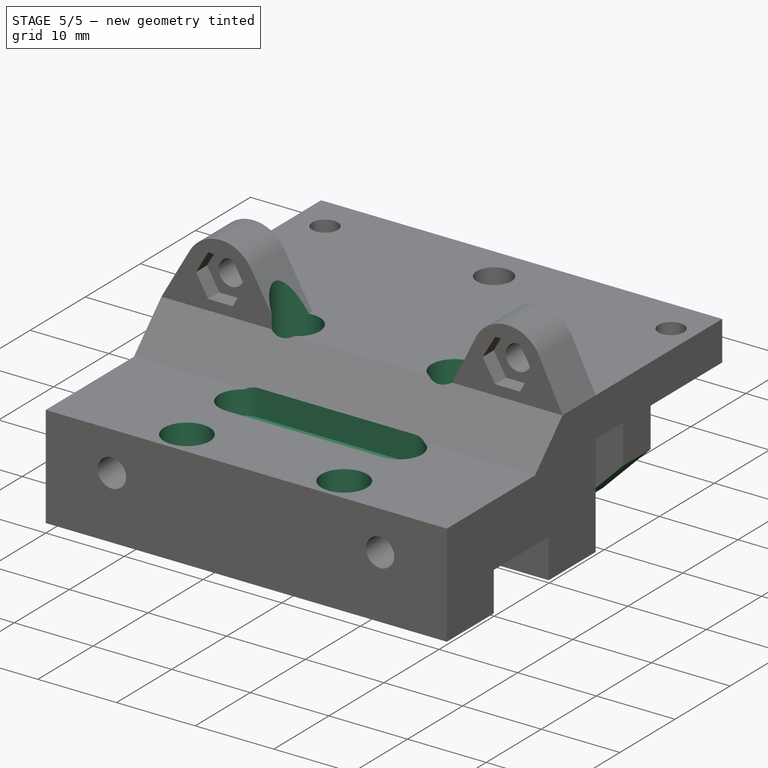
[diagram: stage 5 of 5 — iso view after this stage's code; geometry added in this stage tinted green]
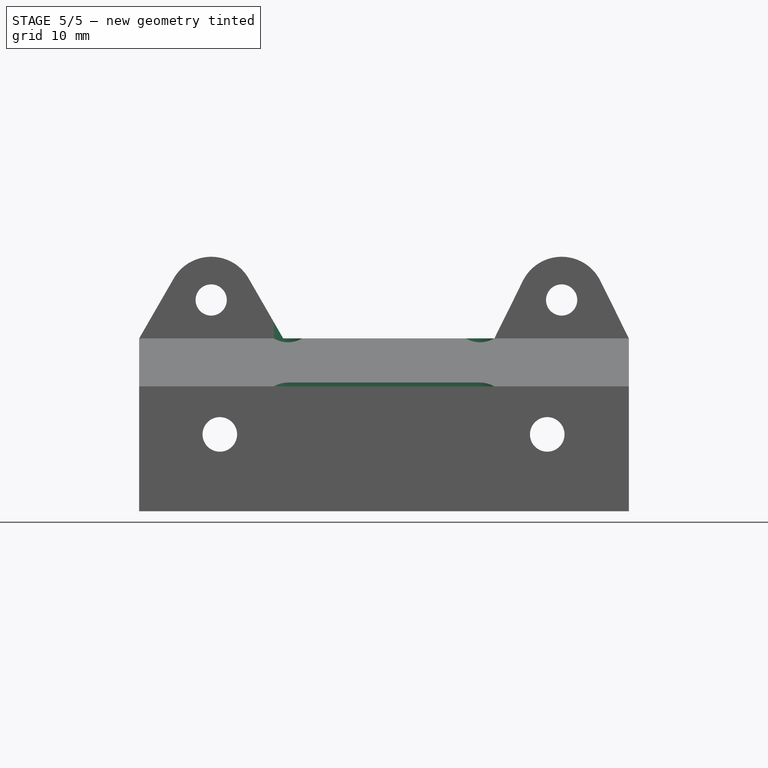
[diagram: stage 5 of 5 — front view after this stage's code; geometry added in this stage tinted green]
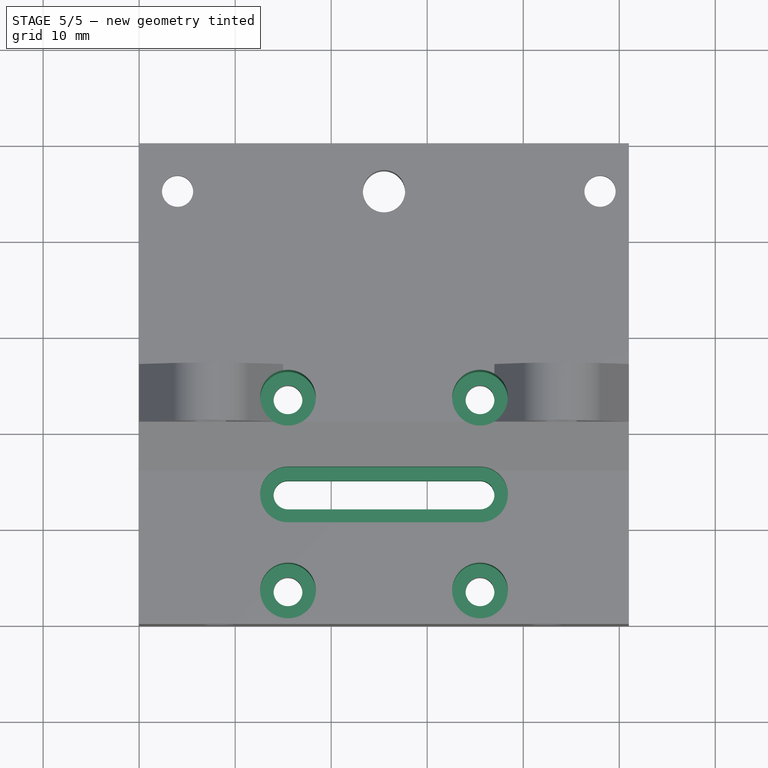
[diagram: stage 5 of 5 — top view after this stage's code; geometry added in this stage tinted green]
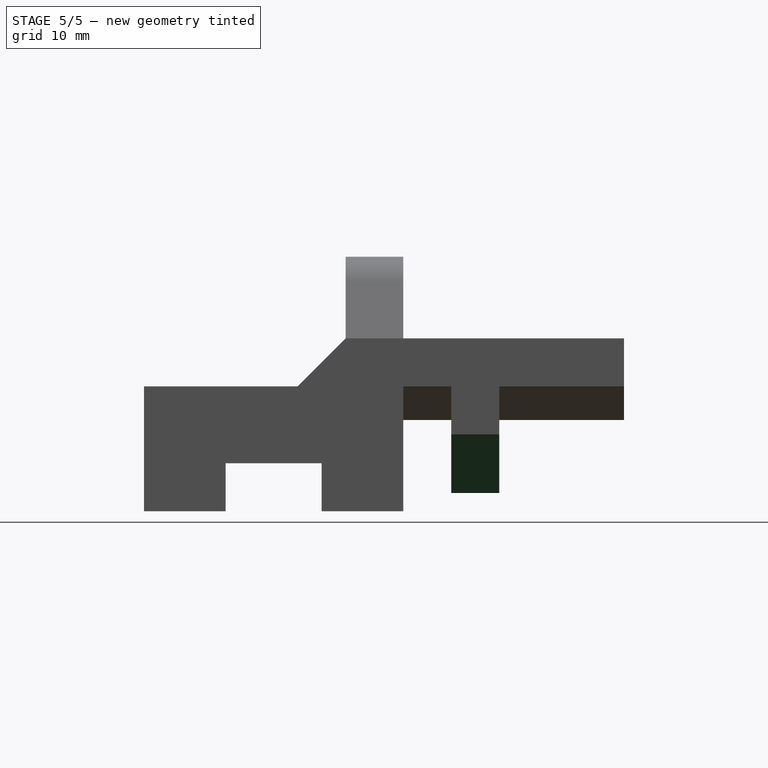
[diagram: stage 5 of 5 — right view after this stage's code; geometry added in this stage tinted green]
FEATURE [Sketcher::SketchObject] Sketch014
  ExternalGeometry = -> [Hole]
  FullyConstrained = true
  MapMode = 5
  Placement = pos=(0,0,5) rot=(0.707107,0.707107,0;3.14159rad)
  sketch-geometry (4):
    g0: Circle CenterX=3.5 CenterY=35.5 CenterZ=0 NormalX=0 NormalY=0 NormalZ=1 AngleXU=0 Radius=2.9
    g1: Circle CenterX=3.5 CenterY=15.5 CenterZ=0 NormalX=0 NormalY=0 NormalZ=1 AngleXU=0 Radius=2.9
    g2: Circle CenterX=23.5 CenterY=35.5 CenterZ=0 NormalX=0 NormalY=0 NormalZ=1 AngleXU=0 Radius=2.9
    g3: Circle CenterX=23.5 CenterY=15.5 CenterZ=0 NormalX=0 NormalY=0 NormalZ=1 AngleXU=0 Radius=2.9
  constraints (8):
    c: Coincident(g0,g-3)
    c: Coincident(g1,g-6)
    c: Coincident(g2,g-4)
    c: Coincident(g3,g-5)
    c: Equal(g0,g2)
    c: Equal(g2,g3)
    c: Equal(g3,g1)
    c: Diameter(g0) = 5.8
FEATURE [PartDesign::Hole] Hole002
  BaseFeature = -> Hole
  Depth = 25
  DepthType = 1
  Diameter = 5.8
  DrillForDepth = false
  DrillPoint = 1
  DrillPointAngle = 118
  HoleCutCountersinkAngle = 90
  HoleCutCustomValues = false
  HoleCutDepth = 0
  HoleCutDiameter = 6.1
  HoleCutType = 0
  ModelActualThread = false
  Placement = pos=(0,0,0) rot=(0.57735,0.57735,0.57735;2.0944rad)
  Profile = -> Sketch014
  Tapered = false
  TaperedAngle = 90
  ThreadAngle = 0
  ThreadClass = 0
  ThreadCutOffInner = 0
  ThreadCutOffOuter = 0
  ThreadDirection = 0
  ThreadFit = 0
  ThreadPitch = 0
  ThreadSize = 0
  ThreadType = 0
  Threaded = false
FEATURE [Sketcher::SketchObject] Sketch015
  ExternalGeometry = -> [Sketch002]
  FullyConstrained = true
  MapMode = 5
  Placement = pos=(1.48e-14,37,-2.55e-14) rot=(0.57735,0.57735,0.57735;4.18879rad)
  Support = -> [Hole002]
  sketch-geometry (12):
    g0: GeomPoint X=8 Y=51 Z=0
    g1: GeomPoint X=1.9 Y=44.9 Z=0
    g2: GeomPoint X=8 Y=-1.63e-14 Z=0
    g3: GeomPoint X=1.9 Y=6.1 Z=0
    g4: LineSegment StartX=8 StartY=51 StartZ=0 EndX=1.9 EndY=44.9 EndZ=0
    g5: LineSegment StartX=1.9 StartY=51 StartZ=0 EndX=1.9 EndY=44.9 EndZ=0
    g6: LineSegment StartX=8 StartY=51 StartZ=0 EndX=1.9 EndY=51 EndZ=0
    g7: LineSegment StartX=8 StartY=-1.63e-14 StartZ=0 EndX=1.9 EndY=-1.21e-14 EndZ=0
    g8: LineSegment StartX=1.9 StartY=-1.21e-14 StartZ=0 EndX=1.9 EndY=6.1 EndZ=0
    g9: LineSegment StartX=1.9 StartY=6.1 StartZ=0 EndX=8 EndY=-1.51e-14 EndZ=0
    g10: LineSegment StartX=13 StartY=51 StartZ=0 EndX=8 EndY=51 EndZ=0
    g11: LineSegment StartX=13 StartY=-1.98e-14 StartZ=0 EndX=8 EndY=-1.63e-14 EndZ=0
  constraints (24):
    c: PointOnObject(g0,g-4)
    c: PointOnObject(g1,g-3)
    c: PointOnObject(g2,g-5)
    c: PointOnObject(g3,g-3)
    c: Coincident(g4,g0)
    c: Coincident(g4,g1)
    c: Coincident(g5,g-4)
    c: Coincident(g5,g4)
    c: Coincident(g6,g4)
    c: Coincident(g6,g5)
    c: Coincident(g7,g2)
    c: Coincident(g7,g-5)
    c: Coincident(g7,g8)
    c: Coincident(g8,g3)
    c: Coincident(g8,g9)
    c: Coincident(g9,g7)
    c: Coincident(g10,g-4)
    c: Coincident(g10,g4)
    c: Coincident(g11,g-5)
    c: Coincident(g11,g7)
    c: Equal(g10,g11)
    c: Equal(g6,g5)
    c: Equal(g7,g8)
    c: Distance(g10) = 5
FEATURE [PartDesign::Pocket] Pocket010
  BaseFeature = -> Hole002
  Length = 5
  Length2 = 100
  Placement = pos=(0,0,0) rot=(0.57735,0.57735,0.57735;2.0944rad)
  Profile = -> Sketch015
  Type = 0
FEATURE [Sketcher::SketchObject] Sketch016
  ExternalGeometry = -> [Pocket010]
  FullyConstrained = true
  MapMode = 5
  Placement = pos=(0,0,0) rot=(0.707107,0.707107,0;3.14159rad)
  Support = -> [Pocket010]
  sketch-geometry (10):
    g0: LineSegment StartX=-1.11e-14 StartY=51 StartZ=0 EndX=27 EndY=51 EndZ=0
    g1: LineSegment StartX=0 StartY=0 StartZ=0 EndX=27 EndY=0 EndZ=0
    g2: GeomPoint X=13.5 Y=51 Z=0
    g3: GeomPoint X=13.5 Y=0 Z=0
    g4: LineSegment StartX=13.5 StartY=51 StartZ=0 EndX=13.5 EndY=0 EndZ=0
    g5: GeomPoint X=13.5 Y=25.5 Z=0
    g6: ArcOfCircle CenterX=13.5 CenterY=35.5 CenterZ=0 NormalX=0 NormalY=0 NormalZ=1 AngleXU=0 Radius=1.5 StartAngle=-9e-16 EndAngle=3.14159
    g7: ArcOfCircle CenterX=13.5 CenterY=15.5 CenterZ=0 NormalX=0 NormalY=0 NormalZ=1 AngleXU=0 Radius=1.5 StartAngle=3.14159 EndAngle=6.28319
    g8: LineSegment StartX=12 StartY=35.5 StartZ=0 EndX=12 EndY=15.5 EndZ=0
    g9: LineSegment StartX=15 StartY=35.5 StartZ=0 EndX=15 EndY=15.5 EndZ=0
  constraints (19):
    c: Coincident(g0,g-4)
    c: Coincident(g0,g-3)
    c: Coincident(g1,g-3)
    c: Coincident(g1,g-1)
    c: Symmetric(g0,g0,g2)
    c: Symmetric(g1,g1,g3)
    c: Coincident(g4,g3)
    c: Coincident(g4,g2)
    c: Symmetric(g4,g4,g5)
    c: Tangent(g6,g9) = 1.5708
    c: Tangent(g6,g8) = -1.5708
    c: Tangent(g8,g7) = -1.5708
    c: Tangent(g9,g7) = 1.5708
    c: Vertical(g8)
    c: Equal(g6,g7)
    c: PointOnObject(g6,g4)
    c: Diameter(g6) = 3
    c: Distance(g5,g6) = 10
    c: Distance(g5,g7) = 10
FEATURE [PartDesign::Pocket] Pocket011
  BaseFeature = -> Pocket010
  Length = 30
  Length2 = 100
  Placement = pos=(0,0,0) rot=(0.57735,0.57735,0.57735;2.0944rad)
  Profile = -> Sketch016
  Type = 1
FEATURE [Sketcher::SketchObject] Sketch017
  AttachmentOffset = pos=(0,0,-5) rot=(0,0,1;0rad)
  ExternalGeometry = -> [Pocket011]
  FullyConstrained = true
  MapMode = 5
  Placement = pos=(-2.8e-15,4.4e-15,10) rot=(0.707107,0.707107,0;3.14159rad)
  Support = -> [Pocket011]
  sketch-geometry (4):
    g0: ArcOfCircle CenterX=13.5 CenterY=35.5 CenterZ=0 NormalX=0 NormalY=0 NormalZ=1 AngleXU=0 Radius=2.9 StartAngle=1e-16 EndAngle=3.14159
    g1: ArcOfCircle CenterX=13.5 CenterY=15.5 CenterZ=0 NormalX=0 NormalY=0 NormalZ=1 AngleXU=0 Radius=2.9 StartAngle=3.14159 EndAngle=6.28319
    g2: LineSegment StartX=10.6 StartY=35.5 StartZ=0 EndX=10.6 EndY=15.5 EndZ=0
    g3: LineSegment StartX=16.4 StartY=35.5 StartZ=0 EndX=16.4 EndY=15.5 EndZ=0
  constraints (8):
    c: Tangent(g0,g3) = 1.5708
    c: Tangent(g0,g2) = -1.5708
    c: Tangent(g2,g1) = -1.5708
    c: Tangent(g3,g1) = 1.5708
    c: Vertical(g2)
    c: Coincident(g0,g-3)
    c: Coincident(g-4,g1)
    c: Diameter(g0) = 5.8
FEATURE [PartDesign::Pocket] Pocket012
  BaseFeature = -> Pocket011
  Length = 5
  Length2 = 100
  Placement = pos=(0,0,0) rot=(0.57735,0.57735,0.57735;2.0944rad)
  Profile = -> Sketch017
  Type = 1
FEATURE [PartDesign::Body] Body
  Group = -> [Sketch,Pad,Sketch001,Pocket,Sketch002,Pocket001,Sketch003,Pad001,Sketch004,Pocket002,Sketch005,Sketch006,Sketch007,Hole001,Sketch008,Pocket003,Pocket004,Pocket005,Sketch009,Pocket006,Sketch010,Pocket007,Sketch011,Pocket008,Sketch012,Pocket009,Sketch013,Sketch014,Hole,Hole002,Sketch015,Pocket010,Sketch016,Pocket011,Sketch017,Pocket012]
  Origin = -> Origin
  Tip = -> Pocket012
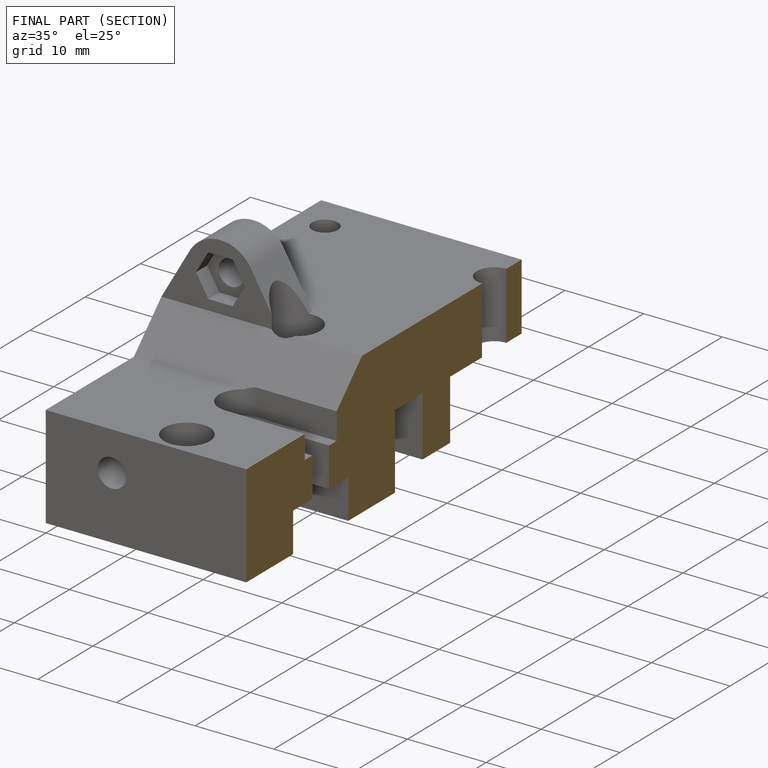
[diagram: finished part — half-section view (interior)]
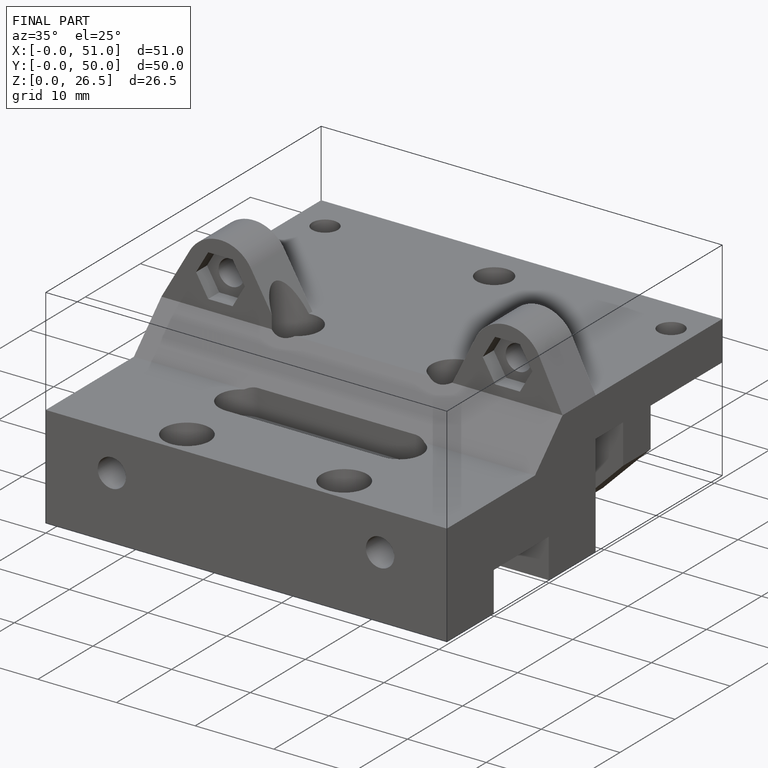
[diagram: finished part — iso view with bounding-box wireframe]
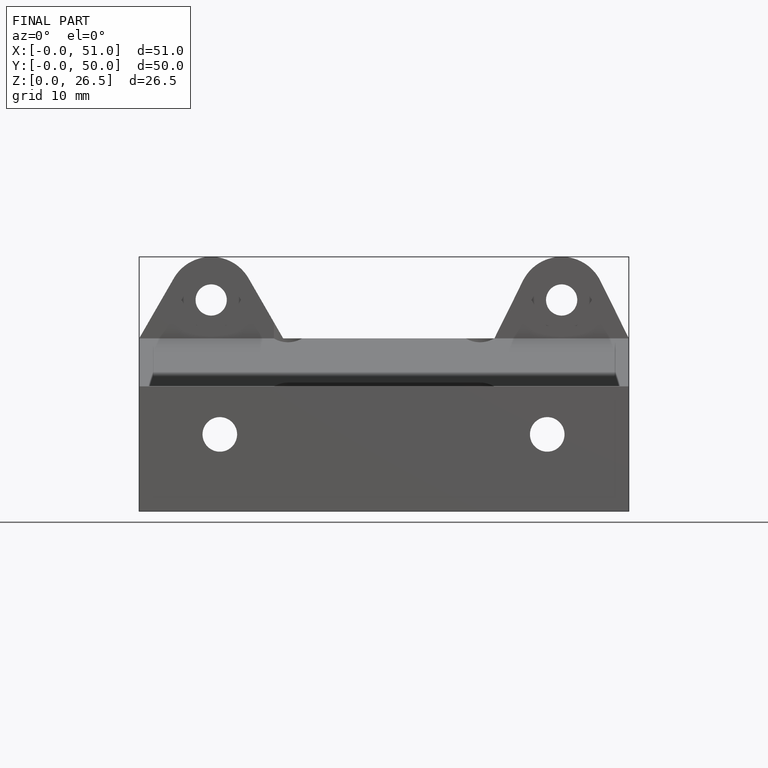
[diagram: finished part — front view with bounding-box wireframe]
